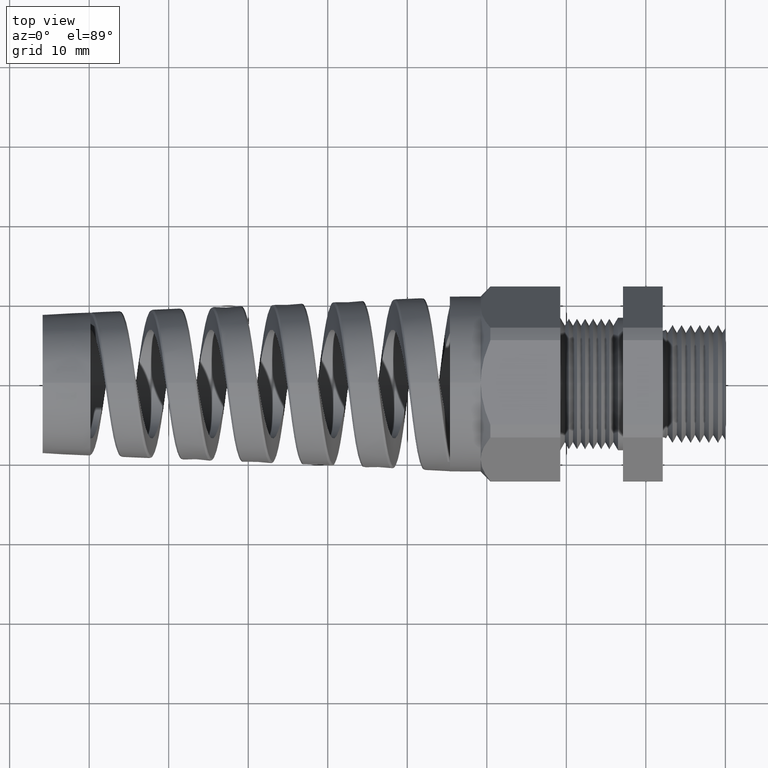
[diagram: clean part render]
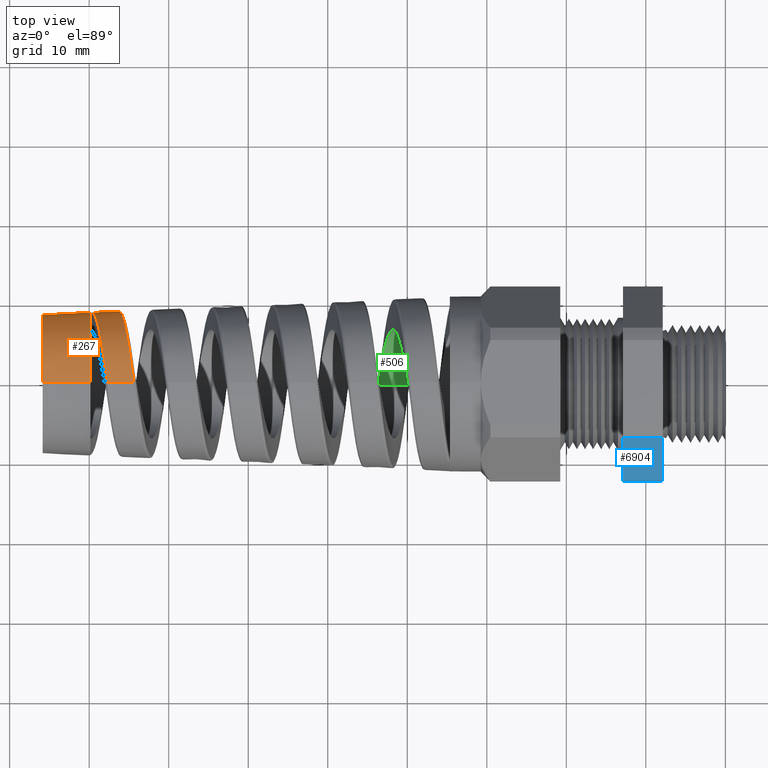
[diagram: same view with three faces highlighted in distinct colors, each labeled with its STEP entity id]
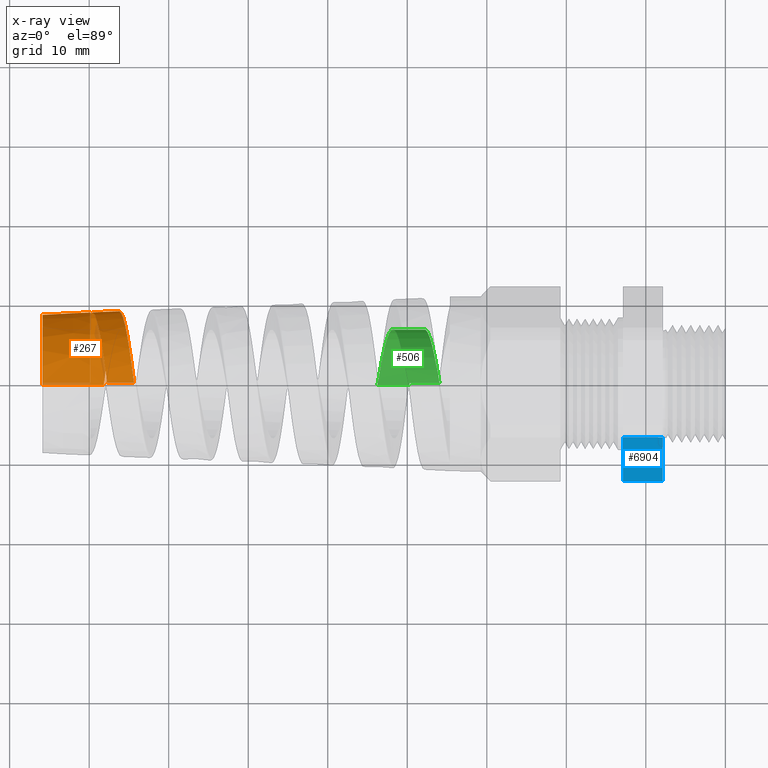
[diagram: x-ray of the same camera — body ghosted, the three highlighted faces saturated]
A machine part, top view with three faces highlighted in distinct colors.
The next image is the same camera in x-ray (body ghosted, the three faces saturated) — at least one of them is partly hidden behind the body in this view.
Their STEP definitions:

[orange] entity #267 — the highlighted conical surface has half-angle 2.5 deg.
#240 = EDGE_CURVE ( 'NONE', #262, #241, #1691, .T. ) ;
#241 = VERTEX_POINT ( 'NONE', #1692 ) ;
#242 = ORIENTED_EDGE ( 'NONE', *, *, #243, .F. ) ;
#243 = EDGE_CURVE ( 'NONE', #250, #241, #1716, .T. ) ;
#249 = VERTEX_POINT ( 'NONE', #1701 ) ;
#250 = VERTEX_POINT ( 'NONE', #1700 ) ;
#251 = ORIENTED_EDGE ( 'NONE', *, *, #252, .T. ) ;
#252 = EDGE_CURVE ( 'NONE', #249, #253, #1699, .T. ) ;
#253 = VERTEX_POINT ( 'NONE', #1762 ) ;
#254 = ORIENTED_EDGE ( 'NONE', *, *, #255, .T. ) ;
#255 = EDGE_CURVE ( 'NONE', #253, #256, #1761, .T. ) ;
#256 = VERTEX_POINT ( 'NONE', #1756 ) ;
#257 = ORIENTED_EDGE ( 'NONE', *, *, #258, .T. ) ;
#258 = EDGE_CURVE ( 'NONE', #256, #259, #1754, .T. ) ;
#259 = VERTEX_POINT ( 'NONE', #1753 ) ;
#260 = ORIENTED_EDGE ( 'NONE', *, *, #261, .T. ) ;
#261 = EDGE_CURVE ( 'NONE', #259, #262, #1755, .T. ) ;
#262 = VERTEX_POINT ( 'NONE', #1745 ) ;
#263 = ORIENTED_EDGE ( 'NONE', *, *, #240, .T. ) ;
#267 = ADVANCED_FACE ( 'NONE', ( #1778 ), #1776, .T. ) ;
#268 = EDGE_LOOP ( 'NONE', ( #269, #251, #254, #257, #260, #263, #242 ) ) ;
#269 = ORIENTED_EDGE ( 'NONE', *, *, #270, .F. ) ;
#270 = EDGE_CURVE ( 'NONE', #249, #250, #1771, .T. ) ;
#1656 = CARTESIAN_POINT ( 'NONE',  ( -3.033693591365048500, 0.2866091191704988600, -0.2172465439973335100 ) ) ;
#1657 = CARTESIAN_POINT ( 'NONE',  ( -3.027431529294343900, 0.3127595271614584900, -0.1780972650026434200 ) ) ;
#1658 = CARTESIAN_POINT ( 'NONE',  ( -3.024258193471124600, 0.3240488916593578000, -0.1569308843408671600 ) ) ;
#1659 = CARTESIAN_POINT ( 'NONE',  ( -3.018015381404750100, 0.3419842798569197000, -0.1134798194048729200 ) ) ;
#1660 = CARTESIAN_POINT ( 'NONE',  ( -3.014915231689075700, 0.3487888303403774400, -0.09100905619788510200 ) ) ;
#1661 = CARTESIAN_POINT ( 'NONE',  ( -3.010206174754474600, 0.3556802644521112100, -0.05617360724133829700 ) ) ;
#1662 = CARTESIAN_POINT ( 'NONE',  ( -3.008625273473789300, 0.3574139288644077000, -0.04436163244558045300 ) ) ;
#1663 = CARTESIAN_POINT ( 'NONE',  ( -3.005497396839320600, 0.3596875636432439500, -0.02087734873088464500 ) ) ;
#1664 = CARTESIAN_POINT ( 'NONE',  ( -3.002385877281418900, 0.3607979222018427000, 0.002596705176005326100 ) ) ;
#1665 = CARTESIAN_POINT ( 'NONE',  ( -2.999277655131456400, 0.3596216420119444600, 0.02604680781484914800 ) ) ;
#1666 = CARTESIAN_POINT ( 'NONE',  ( -2.996157703154907800, 0.3572895052130177200, 0.04948301948948079200 ) ) ;
#1667 = CARTESIAN_POINT ( 'NONE',  ( -2.994585562102722900, 0.3555352888312372000, 0.06124305731674940100 ) ) ;
#1668 = CARTESIAN_POINT ( 'NONE',  ( -2.989872742467603500, 0.3485413385306309100, 0.09615623238913284500 ) ) ;
#1669 = CARTESIAN_POINT ( 'NONE',  ( -2.986780191427159400, 0.3416719507286635200, 0.1186284816537388300 ) ) ;
#1670 = CARTESIAN_POINT ( 'NONE',  ( -2.982125246748612100, 0.3281707862019968000, 0.1511608058367616400 ) ) ;
#1671 = CARTESIAN_POINT ( 'NONE',  ( -2.980570949758451600, 0.3231337616054408300, 0.1618075197441715400 ) ) ;
#1672 = CARTESIAN_POINT ( 'NONE',  ( -2.977441528773703700, 0.3119594572206548200, 0.1826940552288053300 ) ) ;
#1673 = CARTESIAN_POINT ( 'NONE',  ( -2.975867255235686800, 0.3058181527679664200, 0.1929236735268360400 ) ) ;
#1674 = CARTESIAN_POINT ( 'NONE',  ( -2.971194115979081100, 0.2861456284447665400, 0.2223278453439877200 ) ) ;
#1675 = CARTESIAN_POINT ( 'NONE',  ( -2.968110605146902600, 0.2712593460553816600, 0.2404651730177377900 ) ) ;
#1676 = CARTESIAN_POINT ( 'NONE',  ( -2.963449012376373900, 0.2462918346275352300, 0.2654740888584127800 ) ) ;
#1677 = CARTESIAN_POINT ( 'NONE',  ( -2.961881642559847500, 0.2374839246316016500, 0.2734759518575426400 ) ) ;
#1678 = CARTESIAN_POINT ( 'NONE',  ( -2.958753903331218000, 0.2191537629257572000, 0.2885450192441547100 ) ) ;
#1679 = CARTESIAN_POINT ( 'NONE',  ( -2.957202171158078000, 0.2096865776607541300, 0.2955747933903221100 ) ) ;
#1680 = CARTESIAN_POINT ( 'NONE',  ( -2.952560179424370100, 0.1804080589968261900, 0.3151931736631238800 ) ) ;
#1681 = CARTESIAN_POINT ( 'NONE',  ( -2.949483267181080700, 0.1597277641590728000, 0.3263243266211615600 ) ) ;
#1682 = CARTESIAN_POINT ( 'NONE',  ( -2.944804924138431100, 0.1269336310347923500, 0.3400228035383737700 ) ) ;
#1683 = CARTESIAN_POINT ( 'NONE',  ( -2.943236609204955600, 0.1157136282236818600, 0.3440732350730121800 ) ) ;
#1684 = CARTESIAN_POINT ( 'NONE',  ( -2.940133213081006500, 0.09316750144169094700, 0.3509903012438980700 ) ) ;
#1685 = CARTESIAN_POINT ( 'NONE',  ( -2.938589832404234300, 0.08178143849187515000, 0.3538837038320579700 ) ) ;
#1686 = CARTESIAN_POINT ( 'NONE',  ( -2.935505226993159000, 0.05878870263238171500, 0.3585576203390509800 ) ) ;
#1687 = CARTESIAN_POINT ( 'NONE',  ( -2.933963683782007300, 0.04718207210349618900, 0.3603381316806705800 ) ) ;
#1688 = CARTESIAN_POINT ( 'NONE',  ( -2.930868359793911800, 0.02374743702820731500, 0.3627726146524059600 ) ) ;
#1689 = CARTESIAN_POINT ( 'NONE',  ( -2.929307419805101500, 0.01186470260642674500, 0.3634262923343940000 ) ) ;
#1690 = CARTESIAN_POINT ( 'NONE',  ( -2.927749886063948400, -1.604835156929246800E-013, 0.3634942957261391700 ) ) ;
#1691 = B_SPLINE_CURVE_WITH_KNOTS ( 'NONE', 3,
 ( #1690, #1689, #1688, #1687, #1686, #1685, #1684, #1683, #1682, #1681, #1680, #1679, #1678, #1677, #1676, #1675, #1674, #1673, #1672, #1671, #1670, #1669, #1668, #1667, #1666, #1665, #1664, #1663, #1662, #1661, #1660, #1659, #1658, #1657, #1656, #1730, #1729, #1728, #1727, #1726, #1725, #1724, #1723, #1722, #1721, #1720, #1719, #1718, #1717 ),
 .UNSPECIFIED., .F., .F.,
 ( 4, 2, 2, 2, 2, 2, 2, 2, 2, 2, 2, 2, 2, 1, 2, 2, 2, 2, 2, 2, 2, 2, 2, 2, 4 ),
 ( 0.3331259196997622400, 0.3340373450201327100, 0.3349487703405031900, 0.3358601956608736600, 0.3367716209812441400, 0.3385944716219850800, 0.3395058969423555000, 0.3404173222627259700, 0.3422401729034669200, 0.3431515982238374000, 0.3440630235442078700, 0.3458858741849488200, 0.3467972995053192900, 0.3477087248256897600, 0.3486201501460602400, 0.3495315754664307100, 0.3513544261071716000, 0.3531772767479125500, 0.3550001273886535000, 0.3559115527090239700, 0.3568229780293944400, 0.3586458286701353900, 0.3604686793108762800, 0.3613801046312467600, 0.3622915299516172300 ),
 .UNSPECIFIED. ) ;
#1692 = CARTESIAN_POINT ( 'NONE',  ( -3.077706520910765200, 5.037658703896631400E-013, -0.3569470476533396200 ) ) ;
#1696 = DIRECTION ( 'NONE',  ( 0.9990482215818576900, 5.341834311772761800E-018, 0.04361938736533631200 ) ) ;
#1697 = VECTOR ( 'NONE', #1696, 39.37007874015748100 ) ;
#1698 = CARTESIAN_POINT ( 'NONE',  ( -1.289999999999999800, 5.327213576290984500E-017, 0.4349999999999998900 ) ) ;
#1699 = LINE ( 'NONE', #1698, #1697 ) ;
#1700 = CARTESIAN_POINT ( 'NONE',  ( -3.380000472440945400, 0.0000000000000000000, -0.3437486086933848100 ) ) ;
#1701 = CARTESIAN_POINT ( 'NONE',  ( -3.380000472440945400, 4.371669907145647500E-017, 0.3437486086933848100 ) ) ;
#1713 = DIRECTION ( 'NONE',  ( 0.9990482215818576900, 0.0000000000000000000, -0.04361938736533631200 ) ) ;
#1714 = VECTOR ( 'NONE', #1713, 39.37007874015748100 ) ;
#1715 = CARTESIAN_POINT ( 'NONE',  ( -1.289999999999999800, 0.0000000000000000000, -0.4349999999999998900 ) ) ;
#1716 = LINE ( 'NONE', #1715, #1714 ) ;
#1717 = CARTESIAN_POINT ( 'NONE',  ( -3.077706520910765200, 5.037658703896631400E-013, -0.3569470476533396200 ) ) ;
#1718 = CARTESIAN_POINT ( 'NONE',  ( -3.076127110726645200, 0.01181150937285454500, -0.3570160061912010500 ) ) ;
#1719 = CARTESIAN_POINT ( 'NONE',  ( -3.074532023383746100, 0.02374884163206109100, -0.3564909463600768900 ) ) ;
#1720 = CARTESIAN_POINT ( 'NONE',  ( -3.071374357640946700, 0.04727941511127024100, -0.3542780527266103900 ) ) ;
#1721 = CARTESIAN_POINT ( 'NONE',  ( -3.069805545628923000, 0.05891938425022597000, -0.3525957340365882800 ) ) ;
#1722 = CARTESIAN_POINT ( 'NONE',  ( -3.065105284773823200, 0.09346842282993388100, -0.3458591889618452000 ) ) ;
#1723 = CARTESIAN_POINT ( 'NONE',  ( -3.061976877657557800, 0.1160330754383825800, -0.3391224928253645500 ) ) ;
#1724 = CARTESIAN_POINT ( 'NONE',  ( -3.055627155622980200, 0.1600296579199546600, -0.3210243328752789800 ) ) ;
#1725 = CARTESIAN_POINT ( 'NONE',  ( -3.052506664459183800, 0.1807736064175797200, -0.3099509860673426700 ) ) ;
#1726 = CARTESIAN_POINT ( 'NONE',  ( -3.047815213803605900, 0.2100736255570585000, -0.2904330759419900800 ) ) ;
#1727 = CARTESIAN_POINT ( 'NONE',  ( -3.046249837676969100, 0.2195354500594999800, -0.2834388773431219500 ) ) ;
#1728 = CARTESIAN_POINT ( 'NONE',  ( -3.043100654810177600, 0.2378338709314508400, -0.2684530037826817200 ) ) ;
#1729 = CARTESIAN_POINT ( 'NONE',  ( -3.041512588005842700, 0.2466887248007474700, -0.2604339790990818900 ) ) ;
#1730 = CARTESIAN_POINT ( 'NONE',  ( -3.036799995127782600, 0.2717307435505151300, -0.2353916476918709300 ) ) ;
#1731 = CARTESIAN_POINT ( 'NONE',  ( -3.089975007771588600, 0.2055223688313016800, 0.2914737629178024700 ) ) ;
#1732 = CARTESIAN_POINT ( 'NONE',  ( -3.095176172992072600, 0.2362671034547827500, 0.2677954127299699300 ) ) ;
#1733 = CARTESIAN_POINT ( 'NONE',  ( -3.098600855425452900, 0.2547967337352798900, 0.2500091253122154200 ) ) ;
#1734 = CARTESIAN_POINT ( 'NONE',  ( -3.103792462031254900, 0.2796527637028326500, 0.2203634196110559900 ) ) ;
#1735 = CARTESIAN_POINT ( 'NONE',  ( -3.105542799137303200, 0.2874867712805006000, 0.2099151212145565500 ) ) ;
#1736 = CARTESIAN_POINT ( 'NONE',  ( -3.109023378369355900, 0.3018738921535471500, 0.1883535513573077500 ) ) ;
#1737 = CARTESIAN_POINT ( 'NONE',  ( -3.110751408527311100, 0.3084264501071262700, 0.1772608260320115100 ) ) ;
#1738 = CARTESIAN_POINT ( 'NONE',  ( -3.114203565024975100, 0.3202813732714276400, 0.1544699772814420200 ) ) ;
#1739 = CARTESIAN_POINT ( 'NONE',  ( -3.115927579694314000, 0.3255836858479602700, 0.1427718116400020500 ) ) ;
#1740 = CARTESIAN_POINT ( 'NONE',  ( -3.119390986815585400, 0.3349260635063010500, 0.1187671431348179100 ) ) ;
#1741 = CARTESIAN_POINT ( 'NONE',  ( -3.121138580699376300, 0.3389812224353535600, 0.1064022667451066500 ) ) ;
#1742 = CARTESIAN_POINT ( 'NONE',  ( -3.126380352907784500, 0.3490621520642513400, 0.06876674559893421200 ) ) ;
#1745 = CARTESIAN_POINT ( 'NONE',  ( -2.927749886063948400, -1.604835156929246800E-013, 0.3634942957261391700 ) ) ;
#1746 = DIRECTION ( 'NONE',  ( 0.9990482215818576900, 5.341834311772761800E-018, 0.04361938736533631200 ) ) ;
#1747 = VECTOR ( 'NONE', #1746, 39.37007874015748100 ) ;
#1748 = CARTESIAN_POINT ( 'NONE',  ( -1.289999999999999800, 5.327213576290984500E-017, 0.4349999999999998900 ) ) ;
#1749 = CARTESIAN_POINT ( 'NONE',  ( -3.129820080144917400, 0.3529507355025747800, 0.04335823084055777400 ) ) ;
#1750 = CARTESIAN_POINT ( 'NONE',  ( -3.136753714519425500, 0.3552106413282769000, -0.008056734111428667800 ) ) ;
#1751 = CARTESIAN_POINT ( 'NONE',  ( -3.140266402118543400, 0.3535200615755574300, -0.03421754059854220000 ) ) ;
#1752 = CARTESIAN_POINT ( 'NONE',  ( -3.143780000000000000, 0.3489643762835578600, -0.05986583142465568700 ) ) ;
#1753 = CARTESIAN_POINT ( 'NONE',  ( -3.060644769208176600, 1.597366765590081200E-016, 0.3576919798203456200 ) ) ;
#1754 = B_SPLINE_CURVE_WITH_KNOTS ( 'NONE', 3,
 ( #1752, #1751, #1750, #1749, #1742, #1741, #1740, #1739, #1738, #1737, #1736, #1735, #1734, #1733, #1732, #1731, #1794, #1793, #1792, #1791, #1790, #1789, #1788, #1787, #1786, #1785 ),
 .UNSPECIFIED., .F., .F.,
 ( 4, 2, 2, 2, 2, 2, 2, 2, 2, 2, 2, 2, 4 ),
 ( 7.484473684666031400E-016, 0.001999750110701361500, 0.003999500221401974500, 0.004999375276752276800, 0.005999250332102580900, 0.006999125387452883300, 0.007999000442803185600, 0.009998750553503785200, 0.01099862560885409000, 0.01199850066420439200, 0.01299837571955469700, 0.01399825077490500200, 0.01599800088560561800 ),
 .UNSPECIFIED. ) ;
#1755 = LINE ( 'NONE', #1748, #1747 ) ;
#1756 = CARTESIAN_POINT ( 'NONE',  ( -3.143780000000000000, 0.3489643762835578600, -0.05986583142465568700 ) ) ;
#1757 = DIRECTION ( 'NONE',  ( 0.0000000000000000000, 0.0000000000000000000, 1.000000000000000000 ) ) ;
#1758 = DIRECTION ( 'NONE',  ( -1.000000000000000000, 0.0000000000000000000, 0.0000000000000000000 ) ) ;
#1759 = CARTESIAN_POINT ( 'NONE',  ( -3.143780000000000000, 0.0000000000000000000, 0.0000000000000000000 ) ) ;
#1760 = AXIS2_PLACEMENT_3D ( 'NONE', #1759, #1758, #1757 ) ;
#1761 = CIRCLE ( 'NONE', #1760, 0.3540622172544507000 ) ;
#1762 = CARTESIAN_POINT ( 'NONE',  ( -3.143780000000000000, 4.336011610604212400E-017, 0.3540622172550578200 ) ) ;
#1768 = DIRECTION ( 'NONE',  ( 0.0000000000000000000, 0.0000000000000000000, 1.000000000000000000 ) ) ;
#1769 = DIRECTION ( 'NONE',  ( -1.000000000000000000, 0.0000000000000000000, 0.0000000000000000000 ) ) ;
#1770 = AXIS2_PLACEMENT_3D ( 'NONE', #1777, #1769, #1768 ) ;
#1771 = CIRCLE ( 'NONE', #1770, 0.3437486086933848100 ) ;
#1772 = DIRECTION ( 'NONE',  ( 0.0000000000000000000, 0.0000000000000000000, -1.000000000000000000 ) ) ;
#1773 = DIRECTION ( 'NONE',  ( 1.000000000000000000, 0.0000000000000000000, 0.0000000000000000000 ) ) ;
#1774 = CARTESIAN_POINT ( 'NONE',  ( -1.289999999999999800, 0.0000000000000000000, 0.0000000000000000000 ) ) ;
#1775 = AXIS2_PLACEMENT_3D ( 'NONE', #1774, #1773, #1772 ) ;
#1776 = CONICAL_SURFACE ( 'NONE', #1775, 0.4349999999999998900, 0.04363323129985854900 ) ;
#1777 = CARTESIAN_POINT ( 'NONE',  ( -3.380000472440945400, 0.0000000000000000000, 0.0000000000000000000 ) ) ;
#1778 = FACE_OUTER_BOUND ( 'NONE', #268, .T. ) ;
#1785 = CARTESIAN_POINT ( 'NONE',  ( -3.060644769208176600, 1.597366765590081200E-016, 0.3576919798203456200 ) ) ;
#1786 = CARTESIAN_POINT ( 'NONE',  ( -3.064087636290715900, 0.02578387309076542500, 0.3575416609972132400 ) ) ;
#1787 = CARTESIAN_POINT ( 'NONE',  ( -3.067498925623727100, 0.05130568754107729000, 0.3546364631694027300 ) ) ;
#1788 = CARTESIAN_POINT ( 'NONE',  ( -3.072688473038155600, 0.08917435298355046200, 0.3460968375988191000 ) ) ;
#1789 = CARTESIAN_POINT ( 'NONE',  ( -3.074435245530772000, 0.1017584402970638000, 0.3425275518439549500 ) ) ;
#1790 = CARTESIAN_POINT ( 'NONE',  ( -3.077890222096892400, 0.1261834864741151200, 0.3341405724926005400 ) ) ;
#1791 = CARTESIAN_POINT ( 'NONE',  ( -3.079608360121038200, 0.1380994793806539800, 0.3293103631754216700 ) ) ;
#1792 = CARTESIAN_POINT ( 'NONE',  ( -3.083045824820783900, 0.1613455239998738400, 0.3183980331327790300 ) ) ;
#1793 = CARTESIAN_POINT ( 'NONE',  ( -3.084765092471598400, 0.1726755865779998300, 0.3123159168954181600 ) ) ;
#1794 = CARTESIAN_POINT ( 'NONE',  ( -3.088224814028008400, 0.1947365902305793800, 0.2988779507294016000 ) ) ;

[blue] entity #6904 — the highlighted planar face has unit normal (0, -0.866, 0.5).
#538 = VERTEX_POINT ( 'NONE', #3703 ) ;
#583 = EDGE_CURVE ( 'NONE', #538, #584, #3972, .T. ) ;
#584 = VERTEX_POINT ( 'NONE', #4025 ) ;
#3703 = CARTESIAN_POINT ( 'NONE',  ( -0.3100000000000000000, -0.2719366022533518100, 0.3989919884595459200 ) ) ;
#3971 = CARTESIAN_POINT ( 'NONE',  ( -0.3100000000000000000, -0.1592210506462312400, 0.5942210506462306500 ) ) ;
#3972 = LINE ( 'NONE', #3971, #4027 ) ;
#4025 = CARTESIAN_POINT ( 'NONE',  ( -0.3100000000000000000, -0.4815054990391103900, 0.03600801154045398700 ) ) ;
#4026 = DIRECTION ( 'NONE',  ( 0.0000000000000000000, -0.4999999999999997200, -0.8660254037844388200 ) ) ;
#4027 = VECTOR ( 'NONE', #4026, 39.37007874015748900 ) ;
#4999 = CARTESIAN_POINT ( 'NONE',  ( -0.5068503937007874400, -0.4815054990391103900, 0.03600801154045398700 ) ) ;
#5000 = DIRECTION ( 'NONE',  ( -1.000000000000000000, 0.0000000000000000000, 0.0000000000000000000 ) ) ;
#5001 = VECTOR ( 'NONE', #5000, 39.37007874015748100 ) ;
#5002 = CARTESIAN_POINT ( 'NONE',  ( 0.0000000000000000000, -0.4815054990391103900, 0.03600801154045398700 ) ) ;
#5003 = LINE ( 'NONE', #5002, #5001 ) ;
#5009 = DIRECTION ( 'NONE',  ( -1.000000000000000000, 0.0000000000000000000, 0.0000000000000000000 ) ) ;
#5010 = VECTOR ( 'NONE', #5009, 39.37007874015748100 ) ;
#5011 = CARTESIAN_POINT ( 'NONE',  ( 0.0000000000000000000, -0.2719366022533518100, 0.3989919884595459200 ) ) ;
#5012 = LINE ( 'NONE', #5011, #5010 ) ;
#5013 = DIRECTION ( 'NONE',  ( 0.0000000000000000000, 0.4999999999999997200, 0.8660254037844388200 ) ) ;
#5014 = VECTOR ( 'NONE', #5013, 39.37007874015748900 ) ;
#5015 = CARTESIAN_POINT ( 'NONE',  ( -0.5068503937007874400, -0.1592210506462312400, 0.5942210506462306500 ) ) ;
#5021 = LINE ( 'NONE', #5015, #5014 ) ;
#5057 = CARTESIAN_POINT ( 'NONE',  ( -0.5068503937007874400, -0.2719366022533518100, 0.3989919884595459200 ) ) ;
#5075 = DIRECTION ( 'NONE',  ( 0.0000000000000000000, -0.4999999999999997200, -0.8660254037844388200 ) ) ;
#5076 = DIRECTION ( 'NONE',  ( 0.0000000000000000000, -0.8660254037844388200, 0.4999999999999997200 ) ) ;
#5077 = CARTESIAN_POINT ( 'NONE',  ( 0.0000000000000000000, -0.4815054990391102700, 0.03600801154045393800 ) ) ;
#5078 = AXIS2_PLACEMENT_3D ( 'NONE', #5077, #5076, #5075 ) ;
#5079 = PLANE ( 'NONE',  #5078 ) ;
#5080 = FACE_OUTER_BOUND ( 'NONE', #11090, .T. ) ;
#6636 = EDGE_CURVE ( 'NONE', #584, #6641, #5003, .T. ) ;
#6641 = VERTEX_POINT ( 'NONE', #4999 ) ;
#6779 = ORIENTED_EDGE ( 'NONE', *, *, #6783, .F. ) ;
#6783 = EDGE_CURVE ( 'NONE', #6641, #6794, #5021, .T. ) ;
#6785 = EDGE_CURVE ( 'NONE', #538, #6794, #5012, .T. ) ;
#6794 = VERTEX_POINT ( 'NONE', #5057 ) ;
#6904 = ADVANCED_FACE ( 'NONE', ( #5080 ), #5079, .T. ) ;
#11076 = ORIENTED_EDGE ( 'NONE', *, *, #583, .F. ) ;
#11090 = EDGE_LOOP ( 'NONE', ( #11136, #11076, #11138, #6779 ) ) ;
#11136 = ORIENTED_EDGE ( 'NONE', *, *, #6636, .F. ) ;
#11138 = ORIENTED_EDGE ( 'NONE', *, *, #6785, .T. ) ;

[green] entity #506 — the highlighted cylindrical surface (partial cylindrical patch) has radius 6.858 mm, axis along (1, 0, 0).
#401 = VERTEX_POINT ( 'NONE', #2831 ) ;
#417 = ORIENTED_EDGE ( 'NONE', *, *, #524, .T. ) ;
#418 = ORIENTED_EDGE ( 'NONE', *, *, #419, .T. ) ;
#419 = EDGE_CURVE ( 'NONE', #458, #446, #2961, .T. ) ;
#443 = VERTEX_POINT ( 'NONE', #3078 ) ;
#445 = EDGE_CURVE ( 'NONE', #443, #446, #3118, .T. ) ;
#446 = VERTEX_POINT ( 'NONE', #3114 ) ;
#458 = VERTEX_POINT ( 'NONE', #3359 ) ;
#506 = ADVANCED_FACE ( 'NONE', ( #3517 ), #3516, .F. ) ;
#507 = EDGE_LOOP ( 'NONE', ( #508, #509, #417, #418 ) ) ;
#508 = ORIENTED_EDGE ( 'NONE', *, *, #445, .F. ) ;
#509 = ORIENTED_EDGE ( 'NONE', *, *, #510, .T. ) ;
#510 = EDGE_CURVE ( 'NONE', #443, #401, #3586, .T. ) ;
#524 = EDGE_CURVE ( 'NONE', #401, #458, #3646, .T. ) ;
#2831 = CARTESIAN_POINT ( 'NONE',  ( -1.722276713587388200, -5.410190183265118900E-013, -0.2700000000000000700 ) ) ;
#2918 = CARTESIAN_POINT ( 'NONE',  ( -1.418195484563421300, 0.01762643746354343500, 0.2699999999999905800 ) ) ;
#2919 = CARTESIAN_POINT ( 'NONE',  ( -1.421294755537585000, 0.03514298582646793700, 0.2682898358788207700 ) ) ;
#2920 = CARTESIAN_POINT ( 'NONE',  ( -1.426002553351723100, 0.06123432555009489200, 0.2631139938251023100 ) ) ;
#2921 = CARTESIAN_POINT ( 'NONE',  ( -1.427585418038104500, 0.06992148475072812500, 0.2609392960216097000 ) ) ;
#2922 = CARTESIAN_POINT ( 'NONE',  ( -1.430717143299758100, 0.08685989041417692400, 0.2558000970977859500 ) ) ;
#2923 = CARTESIAN_POINT ( 'NONE',  ( -1.432274152123822700, 0.09515689566858409600, 0.2528290529700121800 ) ) ;
#2924 = CARTESIAN_POINT ( 'NONE',  ( -1.436941238565433700, 0.1195371277609170900, 0.2427351115159281600 ) ) ;
#2925 = CARTESIAN_POINT ( 'NONE',  ( -1.440055652228727800, 0.1351551652101465100, 0.2344152698551482400 ) ) ;
#2926 = CARTESIAN_POINT ( 'NONE',  ( -1.446359808699058600, 0.1647863066204209600, 0.2146227168187110100 ) ) ;
#2927 = CARTESIAN_POINT ( 'NONE',  ( -1.449463358202571800, 0.1784005411961305000, 0.2034280039917869000 ) ) ;
#2928 = CARTESIAN_POINT ( 'NONE',  ( -1.454135488960021300, 0.1970733473397546000, 0.1847688346152920300 ) ) ;
#2929 = CARTESIAN_POINT ( 'NONE',  ( -1.455695221225299600, 0.2030041933190523400, 0.1782356730853587000 ) ) ;
#2930 = CARTESIAN_POINT ( 'NONE',  ( -1.458833723941958400, 0.2142632821876617700, 0.1645293395461140100 ) ) ;
#2931 = CARTESIAN_POINT ( 'NONE',  ( -1.460415754091060100, 0.2195975859617836100, 0.1573378448436079700 ) ) ;
#2932 = CARTESIAN_POINT ( 'NONE',  ( -1.465111045313827200, 0.2343432356278218300, 0.1352643213733021000 ) ) ;
#2933 = CARTESIAN_POINT ( 'NONE',  ( -1.468207327670505900, 0.2426355443331525100, 0.1197475262380951800 ) ) ;
#2934 = CARTESIAN_POINT ( 'NONE',  ( -1.474451716197730400, 0.2561591082712971800, 0.08714349467196293200 ) ) ;
#2935 = CARTESIAN_POINT ( 'NONE',  ( -1.477618415057052400, 0.2613803407261668900, 0.06993459945008574700 ) ) ;
#2936 = CARTESIAN_POINT ( 'NONE',  ( -1.483856196302675100, 0.2682530069636170900, 0.03536742814156285800 ) ) ;
#2937 = CARTESIAN_POINT ( 'NONE',  ( -1.486956127505582300, 0.2699928115410170600, 0.01785163212562133900 ) ) ;
#2938 = CARTESIAN_POINT ( 'NONE',  ( -1.491663700154078200, 0.2700035611926976900, -0.008762231827799695600 ) ) ;
#2939 = CARTESIAN_POINT ( 'NONE',  ( -1.493245067488160500, 0.2695641746492490900, -0.01770365796192833000 ) ) ;
#2940 = CARTESIAN_POINT ( 'NONE',  ( -1.496374378090937300, 0.2678271059108151000, -0.03531154342422417000 ) ) ;
#2941 = CARTESIAN_POINT ( 'NONE',  ( -1.497930886806405600, 0.2665314565201579700, -0.04402656312220742200 ) ) ;
#2942 = CARTESIAN_POINT ( 'NONE',  ( -1.502598472475297700, 0.2613859793919630100, -0.06990559403757860800 ) ) ;
#2943 = CARTESIAN_POINT ( 'NONE',  ( -1.505718526228080600, 0.2562627991626523800, -0.08687006577328407200 ) ) ;
#2944 = CARTESIAN_POINT ( 'NONE',  ( -1.512021053451973800, 0.2426357453535640500, -0.1197703036601855400 ) ) ;
#2945 = CARTESIAN_POINT ( 'NONE',  ( -1.515124765131463400, 0.2343137158468190700, -0.1353029306396681700 ) ) ;
#2946 = CARTESIAN_POINT ( 'NONE',  ( -1.519795073630877600, 0.2196519077523375300, -0.1572593066853764400 ) ) ;
#2947 = CARTESIAN_POINT ( 'NONE',  ( -1.521354311155742200, 0.2143989527744609700, -0.1643527627984559500 ) ) ;
#2948 = CARTESIAN_POINT ( 'NONE',  ( -1.524493141144294600, 0.2031449266934034200, -0.1780754905903751700 ) ) ;
#2949 = CARTESIAN_POINT ( 'NONE',  ( -1.526074195364089500, 0.1971337714494900100, -0.1847065405281491900 ) ) ;
#2950 = CARTESIAN_POINT ( 'NONE',  ( -1.530767857340546500, 0.1783671927834533700, -0.2034651429057488000 ) ) ;
#2951 = CARTESIAN_POINT ( 'NONE',  ( -1.533865222439693100, 0.1647667844172693000, -0.2146242837070109500 ) ) ;
#2952 = CARTESIAN_POINT ( 'NONE',  ( -1.540113880155681300, 0.1354163142872104900, -0.2342522107234462900 ) ) ;
#2953 = CARTESIAN_POINT ( 'NONE',  ( -1.543281402289379000, 0.1195589412097506100, -0.2427262968017438700 ) ) ;
#2954 = CARTESIAN_POINT ( 'NONE',  ( -1.549514845663252600, 0.08700267227632638200, -0.2562048606078015700 ) ) ;
#2955 = CARTESIAN_POINT ( 'NONE',  ( -1.552612956723482800, 0.07015997324039151300, -0.2613287392861010600 ) ) ;
#2956 = CARTESIAN_POINT ( 'NONE',  ( -1.557322955089534400, 0.04404517908076897200, -0.2665310585189497000 ) ) ;
#2957 = CARTESIAN_POINT ( 'NONE',  ( -1.558903959689139000, 0.03519414046228945500, -0.2678424331120018400 ) ) ;
#2958 = CARTESIAN_POINT ( 'NONE',  ( -1.562033056177550000, 0.01759308791172002300, -0.2695712888197981900 ) ) ;
#2959 = CARTESIAN_POINT ( 'NONE',  ( -1.563589574380437600, 0.008794774908599908800, -0.2699999999999990700 ) ) ;
#2960 = CARTESIAN_POINT ( 'NONE',  ( -1.565145841962811500, -6.429446938213744300E-017, -0.2700000000000000700 ) ) ;
#2961 = B_SPLINE_CURVE_WITH_KNOTS ( 'NONE', 3,
 ( #2960, #2959, #2958, #2957, #2956, #2955, #2954, #2953, #2952, #2951, #2950, #2949, #2948, #2947, #2946, #2945, #2944, #2943, #2942, #2941, #2940, #2939, #2938, #2937, #2936, #2935, #2934, #2933, #2932, #2931, #2930, #2929, #2928, #2927, #2926, #2925, #2924, #2923, #2922, #2921, #2920, #2919, #2918, #2997 ),
 .UNSPECIFIED., .F., .F.,
 ( 4, 2, 2, 2, 2, 2, 2, 2, 2, 2, 2, 2, 2, 2, 2, 2, 2, 2, 2, 2, 2, 4 ),
 ( 0.2295421434290423300, 0.2302241019429892300, 0.2309060604569361200, 0.2322699774848299100, 0.2336338945127237100, 0.2349978115406175000, 0.2356797700545643900, 0.2363617285685112900, 0.2377256455964050800, 0.2390895626242988700, 0.2397715211382457600, 0.2404534796521926600, 0.2418173966800864500, 0.2431813137079802400, 0.2445452307358740300, 0.2452271892498209300, 0.2459091477637678200, 0.2472730647916616100, 0.2486369818195554000, 0.2493189403335023000, 0.2500008988474491900, 0.2513648158753429800 ),
 .UNSPECIFIED. ) ;
#2997 = CARTESIAN_POINT ( 'NONE',  ( -1.415076947484377800, 1.458817499897941900E-013, 0.2700000000000000700 ) ) ;
#3078 = CARTESIAN_POINT ( 'NONE',  ( -1.572346147939632800, -2.231791755449000100E-014, 0.2699999999999999600 ) ) ;
#3114 = CARTESIAN_POINT ( 'NONE',  ( -1.415076947484377800, 1.458817499897941900E-013, 0.2700000000000000700 ) ) ;
#3115 = DIRECTION ( 'NONE',  ( 1.000000000000000000, 0.0000000000000000000, 0.0000000000000000000 ) ) ;
#3116 = VECTOR ( 'NONE', #3115, 39.37007874015748100 ) ;
#3117 = CARTESIAN_POINT ( 'NONE',  ( 0.0000000000000000000, 3.306546357697853700E-017, 0.2699999999999999600 ) ) ;
#3118 = LINE ( 'NONE', #3117, #3116 ) ;
#3359 = CARTESIAN_POINT ( 'NONE',  ( -1.565145841962811500, -6.429446938213744300E-017, -0.2700000000000000700 ) ) ;
#3513 = DIRECTION ( 'NONE',  ( 0.0000000000000000000, 0.0000000000000000000, -1.000000000000000000 ) ) ;
#3514 = DIRECTION ( 'NONE',  ( 1.000000000000000000, 0.0000000000000000000, 0.0000000000000000000 ) ) ;
#3515 = AXIS2_PLACEMENT_3D ( 'NONE', #3522, #3514, #3513 ) ;
#3516 = CYLINDRICAL_SURFACE ( 'NONE', #3515, 0.2699999999999999600 ) ;
#3517 = FACE_OUTER_BOUND ( 'NONE', #507, .T. ) ;
#3522 = CARTESIAN_POINT ( 'NONE',  ( 0.0000000000000000000, 0.0000000000000000000, 0.0000000000000000000 ) ) ;
#3542 = CARTESIAN_POINT ( 'NONE',  ( -1.706654914908786200, 0.08685056561496207200, -0.2558046221245525200 ) ) ;
#3543 = CARTESIAN_POINT ( 'NONE',  ( -1.705094227170794700, 0.09516966292715495200, -0.2528245762676122300 ) ) ;
#3544 = CARTESIAN_POINT ( 'NONE',  ( -1.700424217289045800, 0.1195752231004700600, -0.2427177176201532600 ) ) ;
#3545 = CARTESIAN_POINT ( 'NONE',  ( -1.697327507819265800, 0.1351151065255136500, -0.2344348009358874200 ) ) ;
#3546 = CARTESIAN_POINT ( 'NONE',  ( -1.692617464365647300, 0.1572849378182867600, -0.2196369511507802500 ) ) ;
#3547 = CARTESIAN_POINT ( 'NONE',  ( -1.691040372803384000, 0.1644617055490000000, -0.2143138409779273600 ) ) ;
#3548 = CARTESIAN_POINT ( 'NONE',  ( -1.687917026367902200, 0.1781220519675288700, -0.2031024609148672500 ) ) ;
#3549 = CARTESIAN_POINT ( 'NONE',  ( -1.686362430901186600, 0.1846455186104611100, -0.1971886670706694300 ) ) ;
#3550 = CARTESIAN_POINT ( 'NONE',  ( -1.683253178339409600, 0.1970858572458727400, -0.1847552511775861500 ) ) ;
#3551 = CARTESIAN_POINT ( 'NONE',  ( -1.681698887632274900, 0.2030027708390822700, -0.1782355786918778700 ) ) ;
#3552 = CARTESIAN_POINT ( 'NONE',  ( -1.678574973638524000, 0.2142198193775338200, -0.1645840680802074500 ) ) ;
#3553 = CARTESIAN_POINT ( 'NONE',  ( -1.676997458012738900, 0.2195449278221927000, -0.1574134838896950100 ) ) ;
#3554 = CARTESIAN_POINT ( 'NONE',  ( -1.672283726622480800, 0.2343591616578529800, -0.1352468273860807600 ) ) ;
#3555 = CARTESIAN_POINT ( 'NONE',  ( -1.669186533607841100, 0.2426510925501116600, -0.1197101778515054600 ) ) ;
#3556 = CARTESIAN_POINT ( 'NONE',  ( -1.664519124128484000, 0.2527709053459221100, -0.09531206250970264400 ) ) ;
#3557 = CARTESIAN_POINT ( 'NONE',  ( -1.662959751375288300, 0.2557551570517781500, -0.08699589567375648500 ) ) ;
#3558 = CARTESIAN_POINT ( 'NONE',  ( -1.659818393271276000, 0.2609225211848607600, -0.06998874310340680300 ) ) ;
#3559 = CARTESIAN_POINT ( 'NONE',  ( -1.658241594607261300, 0.2630918317815590900, -0.06132481298714746000 ) ) ;
#3560 = CARTESIAN_POINT ( 'NONE',  ( -1.653556533444506600, 0.2682608894306023900, -0.03533091782337088200 ) ) ;
#3561 = CARTESIAN_POINT ( 'NONE',  ( -1.650461568374201400, 0.2699899391088602100, -0.01782515459779483400 ) ) ;
#3562 = CARTESIAN_POINT ( 'NONE',  ( -1.645774666785350600, 0.2700049653774606600, 0.008683001245344206000 ) ) ;
#3563 = CARTESIAN_POINT ( 'NONE',  ( -1.644196889733718700, 0.2695716801649323300, 0.01760812428608295900 ) ) ;
#3564 = CARTESIAN_POINT ( 'NONE',  ( -1.641056206674801100, 0.2678309474869956000, 0.03529193046628265100 ) ) ;
#3565 = CARTESIAN_POINT ( 'NONE',  ( -1.639497069317808400, 0.2665312665188739900, 0.04402940231114629100 ) ) ;
#3566 = CARTESIAN_POINT ( 'NONE',  ( -1.634830091320673900, 0.2613797638940276700, 0.06993308392191352500 ) ) ;
#3567 = CARTESIAN_POINT ( 'NONE',  ( -1.631732827271757700, 0.2562869912103902800, 0.08679344030243860100 ) ) ;
#3568 = CARTESIAN_POINT ( 'NONE',  ( -1.627018412351952400, 0.2460909711309342300, 0.1114372680643042100 ) ) ;
#3569 = CARTESIAN_POINT ( 'NONE',  ( -1.625442136090997200, 0.2422729358815379200, 0.1195066552511097200 ) ) ;
#3570 = CARTESIAN_POINT ( 'NONE',  ( -1.622319536874876000, 0.2339443111851250100, 0.1350854373131492300 ) ) ;
#3571 = CARTESIAN_POINT ( 'NONE',  ( -1.619209782273700200, 0.2248906986753763400, 0.1501859847981494900 ) ) ;
#3572 = CARTESIAN_POINT ( 'NONE',  ( -1.616099757083887300, 0.2144083266349917100, 0.1643386040562326300 ) ) ;
#3573 = CARTESIAN_POINT ( 'NONE',  ( -1.612975405548152200, 0.2032023868116094900, 0.1780081383185429800 ) ) ;
#3574 = CARTESIAN_POINT ( 'NONE',  ( -1.611397511932617200, 0.1972025682466416200, 0.1846348847037769000 ) ) ;
#3575 = CARTESIAN_POINT ( 'NONE',  ( -1.606688799963643900, 0.1783608785091351500, 0.2034772009539221900 ) ) ;
#3576 = CARTESIAN_POINT ( 'NONE',  ( -1.603592573247511800, 0.1647429178924804400, 0.2146391523091493400 ) ) ;
#3577 = CARTESIAN_POINT ( 'NONE',  ( -1.597366170166647900, 0.1354633055087740300, 0.2342218767757514900 ) ) ;
#3578 = CARTESIAN_POINT ( 'NONE',  ( -1.594204133264751900, 0.1196166797923630400, 0.2427010411469994700 ) ) ;
#3579 = CARTESIAN_POINT ( 'NONE',  ( -1.587958200038573000, 0.08698018644142395400, 0.2562155198753606800 ) ) ;
#3580 = CARTESIAN_POINT ( 'NONE',  ( -1.584863454128811600, 0.07014800687740398200, 0.2613270252252684600 ) ) ;
#3581 = CARTESIAN_POINT ( 'NONE',  ( -1.580177158234890900, 0.04414129569855305300, 0.2665139494652073400 ) ) ;
#3582 = CARTESIAN_POINT ( 'NONE',  ( -1.578598919977393100, 0.03529605679688127600, 0.2678302416429282400 ) ) ;
#3583 = CARTESIAN_POINT ( 'NONE',  ( -1.575460631663514200, 0.01762203705980074400, 0.2695706099963070500 ) ) ;
#3584 = CARTESIAN_POINT ( 'NONE',  ( -1.573901949524559600, 0.008802068447300940800, 0.2700000000000006300 ) ) ;
#3585 = CARTESIAN_POINT ( 'NONE',  ( -1.572346147939632800, -2.231791755449000100E-014, 0.2699999999999999600 ) ) ;
#3586 = B_SPLINE_CURVE_WITH_KNOTS ( 'NONE', 3,
 ( #3585, #3584, #3583, #3582, #3581, #3580, #3579, #3578, #3577, #3576, #3575, #3574, #3573, #3572, #3571, #3570, #3569, #3568, #3567, #3566, #3565, #3564, #3563, #3562, #3561, #3560, #3559, #3558, #3557, #3556, #3555, #3554, #3553, #3552, #3551, #3550, #3549, #3548, #3547, #3546, #3545, #3544, #3543, #3542, #3620, #3619, #3618, #3617, #3616 ),
 .UNSPECIFIED., .F., .F.,
 ( 4, 2, 2, 2, 2, 2, 2, 1, 2, 2, 2, 2, 2, 2, 2, 2, 2, 2, 2, 2, 2, 2, 2, 2, 4 ),
 ( 0.05135915674969813300, 0.05203966186704624100, 0.05272016698439435000, 0.05408117721909056600, 0.05544218745378678300, 0.05680319768848299900, 0.05748370280583110800, 0.05816420792317921600, 0.05884471304052733100, 0.05952521815787544000, 0.06088622839257165600, 0.06156673350991977200, 0.06224723862726788000, 0.06360824886196409000, 0.06428875397931220500, 0.06496925909666030600, 0.06633026933135652300, 0.06701077444870462400, 0.06769127956605272600, 0.06837178468340084100, 0.06905228980074894200, 0.07041330003544514500, 0.07109380515279326000, 0.07177431027014136200, 0.07313532050483756400 ),
 .UNSPECIFIED. ) ;
#3616 = CARTESIAN_POINT ( 'NONE',  ( -1.722276713587388200, -5.410190183265118900E-013, -0.2700000000000000700 ) ) ;
#3617 = CARTESIAN_POINT ( 'NONE',  ( -1.719153309218369500, 0.01767551048298951100, -0.2700000000000356000 ) ) ;
#3618 = CARTESIAN_POINT ( 'NONE',  ( -1.716058972368055300, 0.03518235111768552900, -0.2682802177188649600 ) ) ;
#3619 = CARTESIAN_POINT ( 'NONE',  ( -1.711374635545717100, 0.06117476788969186000, -0.2631267109892202500 ) ) ;
#3620 = CARTESIAN_POINT ( 'NONE',  ( -1.709798540704908300, 0.06983621403439660400, -0.2609634623031849600 ) ) ;
#3627 = DIRECTION ( 'NONE',  ( 1.000000000000000000, 0.0000000000000000000, 0.0000000000000000000 ) ) ;
#3628 = VECTOR ( 'NONE', #3627, 39.37007874015748100 ) ;
#3645 = CARTESIAN_POINT ( 'NONE',  ( 0.0000000000000000000, 0.0000000000000000000, -0.2699999999999999600 ) ) ;
#3646 = LINE ( 'NONE', #3645, #3628 ) ;